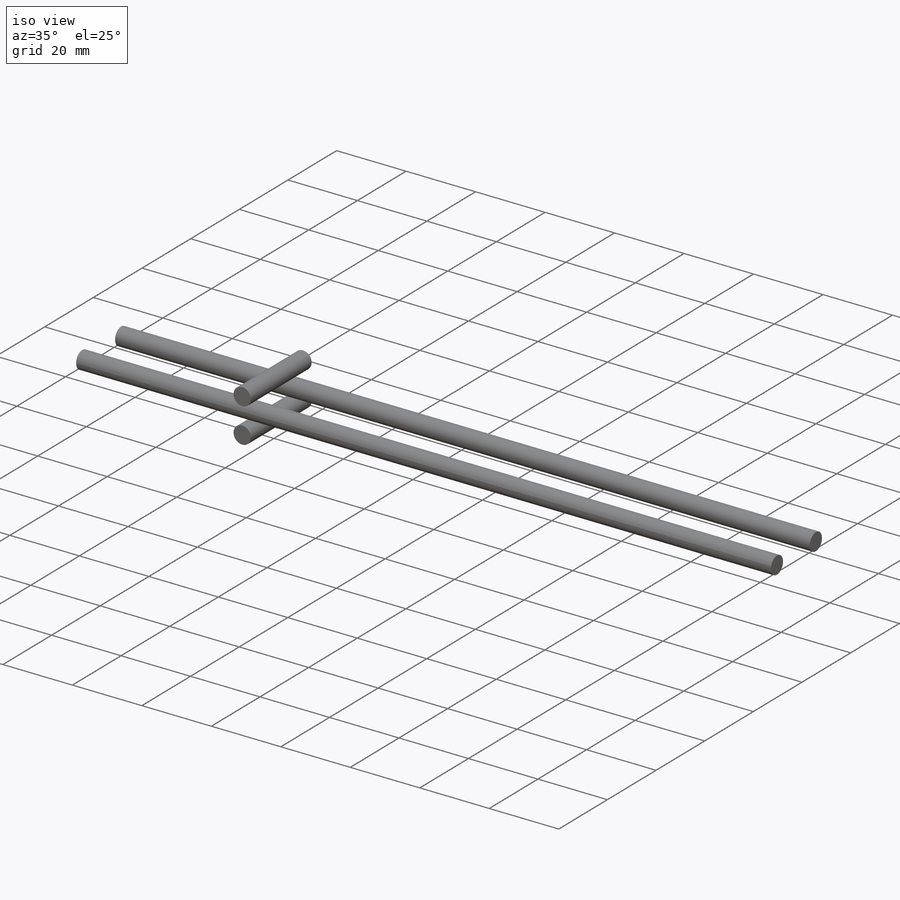
[diagram: iso view]
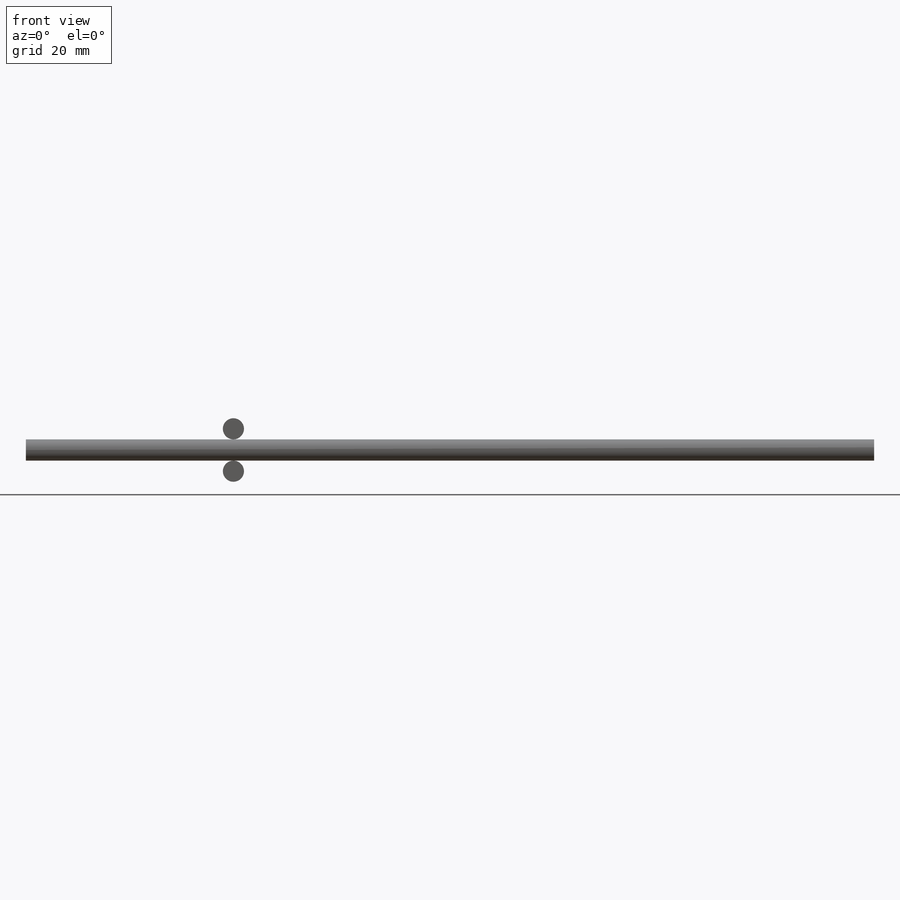
[diagram: front view]
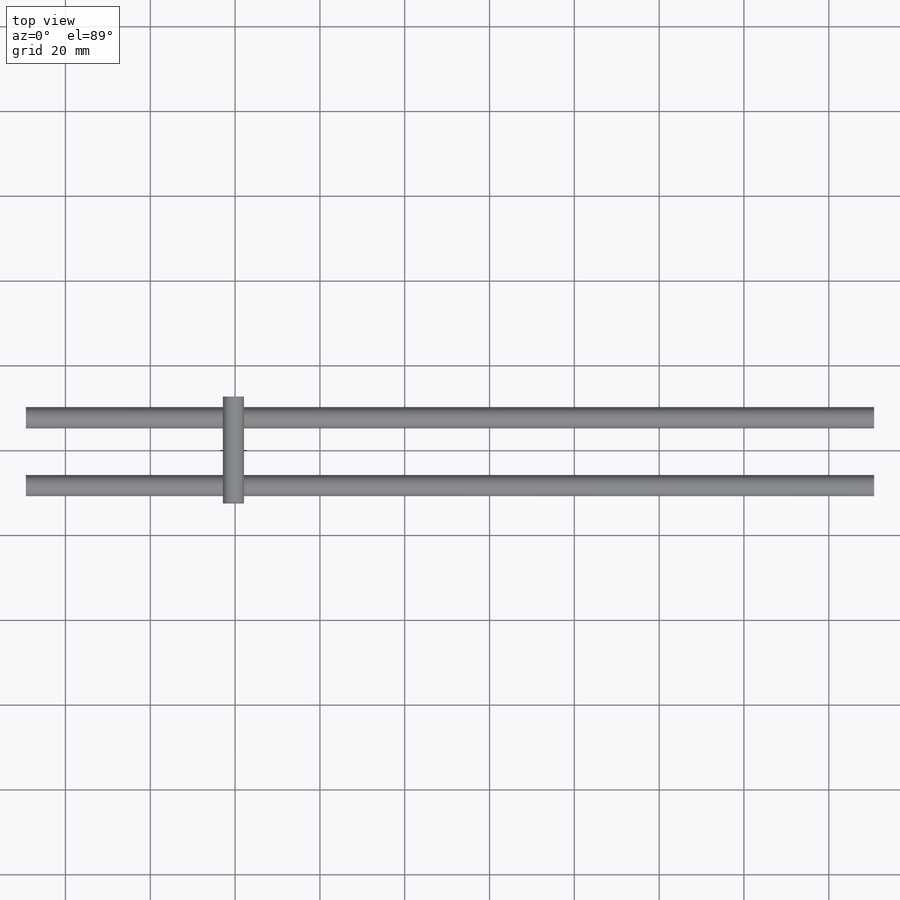
[diagram: top view]
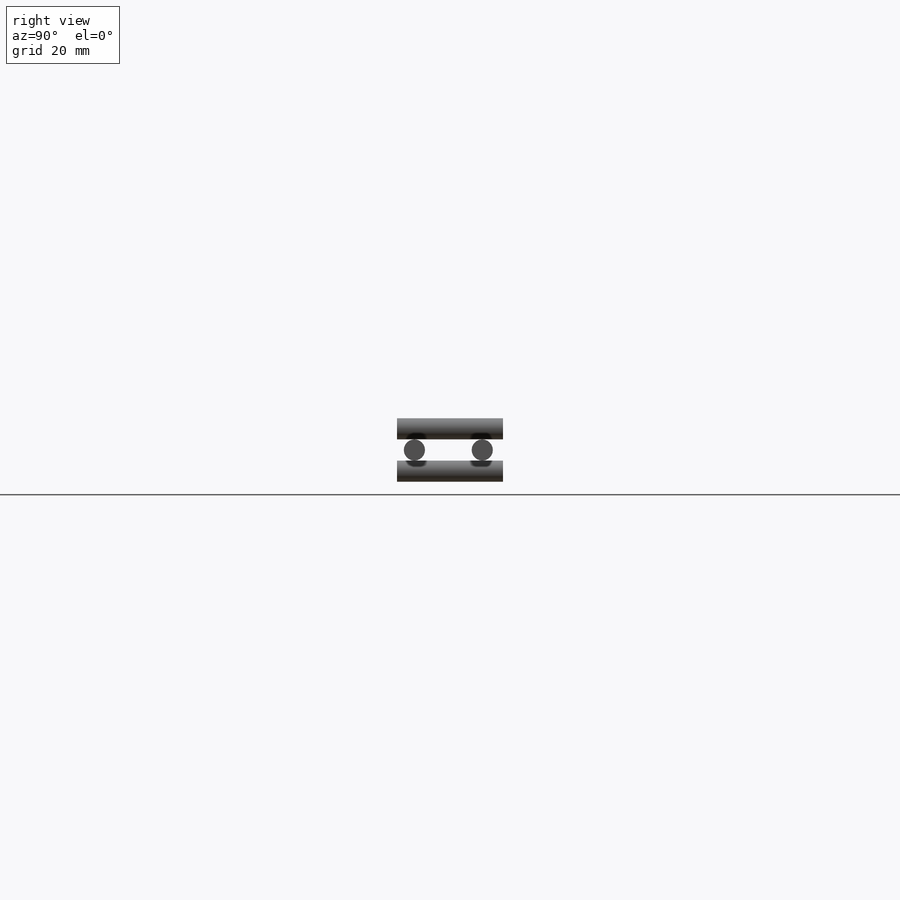
[diagram: right view]
SOLIDWORKS PART (.sldprt)
format: sldprt  version: not decoded by parser v0  size: 186,880 bytes
history: native  units: mm
features: sketch x8, plane x6, extrude x4, material x1, sweep x1 (+13 scaffold rows collapsed)
feature tree (33):
  scaffold x13  (default folders/planes/origin — collapsed)
  material  "材质 <未指定>"
  plane  "前视基准面"
  plane  "上视基准面"
  plane  "右视基准面"
  sketch  "草图1"  dims[c1.D1=8.0mm c1.D2=200.0mm c2.D1=100.0mm]
  plane  "基准面1"
  sketch  "草图2"  dims[D1=~1.846308mm]
  sweep  "扫描1"
  sketch  "草图3"  dims[D2=~1.974352mm D1=16.0mm]
  extrude  "凸台-拉伸1"  Depth=100mm
  sketch  "草图5"  dims[D1=~2.393845mm]
  extrude  "凸台-拉伸3"  Depth=100mm
  sketch  "草图6"
  plane  "基准面2"
  sketch  "草图9"  dims[D3=5.0mm D4=5.0mm D1=3.0mm D2=3.0mm]
  extrude  "凸台-拉伸4"  Depth=60mm
  sketch  "草图11"
  plane  "基准面3"
  sketch  "草图12"  dims[D3=5.0mm D4=5.0mm D1=3.0mm D2=3.0mm]
  extrude  "凸台-拉伸5"  Depth=15mm
decode coverage: 10 of 13 modeling features carry decoded parameters
note: ~ marks probable driven/reference dimensions
note: suppression state not decoded; provenance and decode notes live in map.json
